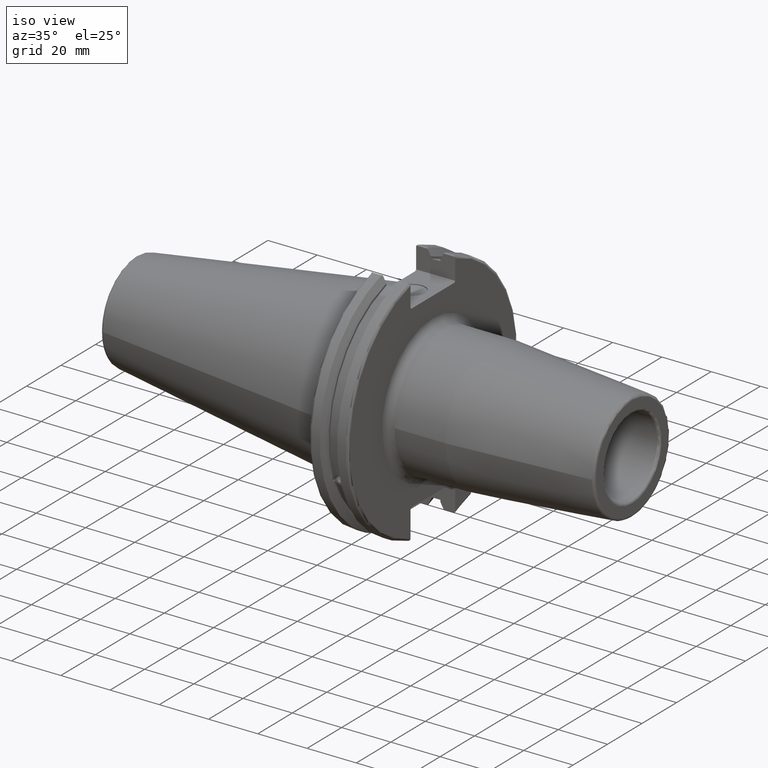
[diagram: clean part render]
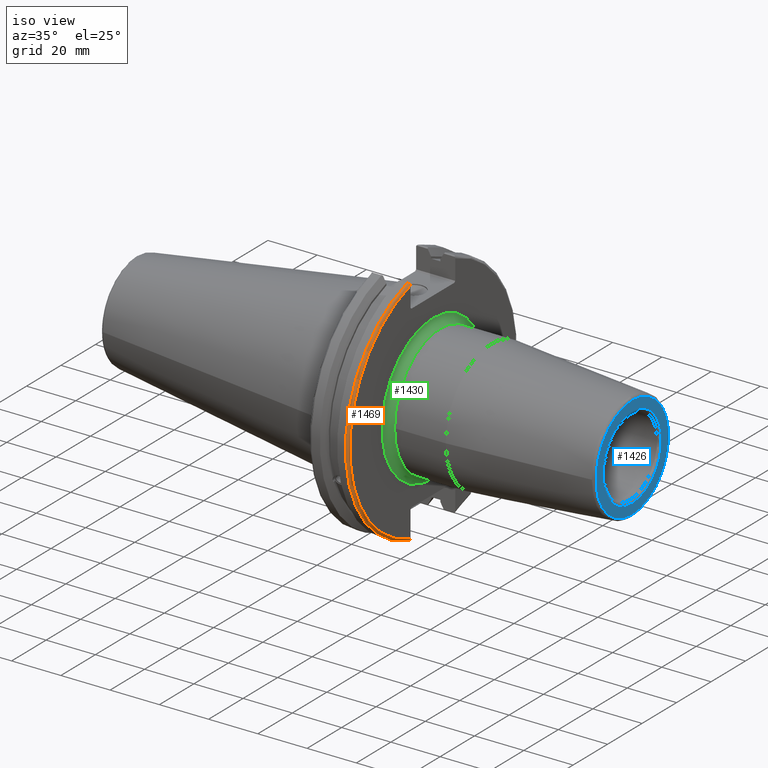
[diagram: same view with three faces highlighted in distinct colors, each labeled with its STEP entity id]
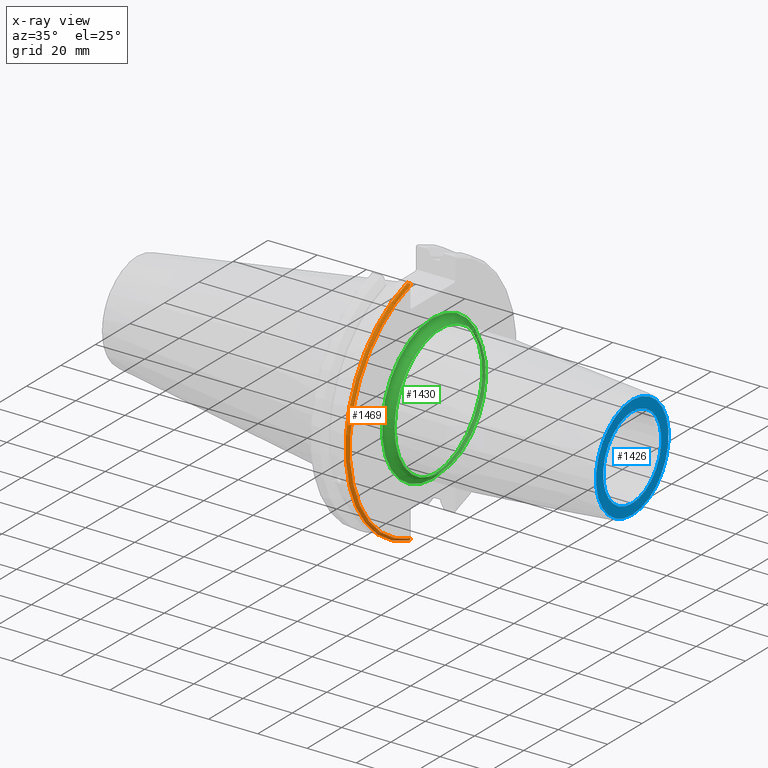
[diagram: x-ray of the same camera — body ghosted, the three highlighted faces saturated]
A machine part, iso view with three faces highlighted in distinct colors.
The next image is the same camera in x-ray (body ghosted, the three faces saturated) — at least one of them is partly hidden behind the body in this view.
Their STEP definitions:

[orange] entity #1469 — the highlighted toroidal blend (fillet) surface has major radius 48.2125 mm and minor (blend) radius 1 mm.
#60=B_SPLINE_CURVE_WITH_KNOTS('',3,(#2809,#2810,#2811,#2812,#2813,#2814),
 .UNSPECIFIED.,.F.,.F.,(4,2,4),(0.097707143645253,0.112358403262293,0.150882178076498),
 .UNSPECIFIED.);
#61=B_SPLINE_CURVE_WITH_KNOTS('',3,(#2816,#2817,#2818,#2819,#2820,#2821),
 .UNSPECIFIED.,.F.,.F.,(4,2,4),(0.452859694247731,0.491383469061936,0.506034728678978),
 .UNSPECIFIED.);
#62=B_SPLINE_CURVE_WITH_KNOTS('',3,(#2823,#2824,#2825,#2826,#2827,#2828,
#2829,#2830),.UNSPECIFIED.,.F.,.F.,(4,2,2,4),(-0.104075769062722,-0.0730268503455477,
-0.0343639873656263,0.),.UNSPECIFIED.);
#63=B_SPLINE_CURVE_WITH_KNOTS('',3,(#2833,#2834,#2835,#2836,#2837,#2838,
#2839,#2840),.UNSPECIFIED.,.F.,.F.,(4,2,2,4),(0.,0.0364336453281818,0.0778720357014993,
0.104197480645881),.UNSPECIFIED.);
#390=FACE_OUTER_BOUND('',#491,.T.);
#491=EDGE_LOOP('',(#1219,#1220,#1221,#1222,#1223,#1224));
#549=CIRCLE('',#1555,48.2125);
#587=CIRCLE('',#1632,49.2125);
#625=VERTEX_POINT('',#2152);
#626=VERTEX_POINT('',#2154);
#723=VERTEX_POINT('',#2808);
#724=VERTEX_POINT('',#2815);
#725=VERTEX_POINT('',#2822);
#726=VERTEX_POINT('',#2831);
#779=EDGE_CURVE('',#626,#625,#549,.T.);
#906=EDGE_CURVE('',#723,#626,#60,.T.);
#907=EDGE_CURVE('',#625,#724,#61,.T.);
#908=EDGE_CURVE('',#724,#725,#62,.T.);
#909=EDGE_CURVE('',#725,#726,#587,.T.);
#910=EDGE_CURVE('',#726,#723,#63,.T.);
#1219=ORIENTED_EDGE('',*,*,#906,.T.);
#1220=ORIENTED_EDGE('',*,*,#779,.T.);
#1221=ORIENTED_EDGE('',*,*,#907,.T.);
#1222=ORIENTED_EDGE('',*,*,#908,.T.);
#1223=ORIENTED_EDGE('',*,*,#909,.T.);
#1224=ORIENTED_EDGE('',*,*,#910,.T.);
#1421=TOROIDAL_SURFACE('',#1631,48.2125,1.);
#1469=ADVANCED_FACE('',(#390),#1421,.T.);
#1555=AXIS2_PLACEMENT_3D('',#2155,#1748,#1749);
#1631=AXIS2_PLACEMENT_3D('',#2807,#1950,#1951);
#1632=AXIS2_PLACEMENT_3D('',#2832,#1952,#1953);
#1748=DIRECTION('center_axis',(-1.,0.,0.));
#1749=DIRECTION('ref_axis',(0.,-1.,1.60812264967664E-16));
#1950=DIRECTION('center_axis',(1.,0.,0.));
#1951=DIRECTION('ref_axis',(0.,0.,-1.));
#1952=DIRECTION('center_axis',(1.,0.,0.));
#1953=DIRECTION('ref_axis',(0.,-1.,1.60812264967664E-16));
#2152=CARTESIAN_POINT('',(19.05,-12.95,46.4407434937254));
#2154=CARTESIAN_POINT('',(19.05,-12.95,-46.4407434937254));
#2155=CARTESIAN_POINT('Origin',(19.05,0.,0.));
#2807=CARTESIAN_POINT('Origin',(18.05,0.,0.));
#2808=CARTESIAN_POINT('',(18.9055020570566,-12.95,-46.9780755322917));
#2809=CARTESIAN_POINT('Ctrl Pts',(18.9055020570566,-12.95,-46.9780755322917));
#2810=CARTESIAN_POINT('Ctrl Pts',(18.9322353702005,-12.95,-46.9322596399785));
#2811=CARTESIAN_POINT('Ctrl Pts',(18.9549831813775,-12.95,-46.8849952622217));
#2812=CARTESIAN_POINT('Ctrl Pts',(19.0209992543299,-12.95,-46.7204975987179));
#2813=CARTESIAN_POINT('Ctrl Pts',(19.05,-12.95,-46.5691560764394));
#2814=CARTESIAN_POINT('Ctrl Pts',(19.05,-12.95,-46.4407434937254));
#2815=CARTESIAN_POINT('',(18.9055020570566,-12.95,46.9780755322918));
#2816=CARTESIAN_POINT('Ctrl Pts',(19.05,-12.95,46.4407434937254));
#2817=CARTESIAN_POINT('Ctrl Pts',(19.05,-12.95,46.5691560764394));
#2818=CARTESIAN_POINT('Ctrl Pts',(19.0209992543299,-12.95,46.7204975987179));
#2819=CARTESIAN_POINT('Ctrl Pts',(18.9549831813775,-12.95,46.8849952622217));
#2820=CARTESIAN_POINT('Ctrl Pts',(18.9322353702005,-12.95,46.9322596399785));
#2821=CARTESIAN_POINT('Ctrl Pts',(18.9055020570566,-12.95,46.9780755322918));
#2822=CARTESIAN_POINT('',(18.05,-13.4317035994433,47.3440544806494));
#2823=CARTESIAN_POINT('Ctrl Pts',(18.9055020570566,-12.95,46.9780755322918));
#2824=CARTESIAN_POINT('Ctrl Pts',(18.8571496772125,-13.0300321736484,47.0388807469102));
#2825=CARTESIAN_POINT('Ctrl Pts',(18.792640282015,-13.1083611826073,47.0983919657547));
#2826=CARTESIAN_POINT('Ctrl Pts',(18.6399248789208,-13.2478194810695,47.2043467509586));
#2827=CARTESIAN_POINT('Ctrl Pts',(18.5186188350904,-13.3242014686233,47.2623787015413));
#2828=CARTESIAN_POINT('Ctrl Pts',(18.2983889675417,-13.4067722493645,47.3251126473446));
#2829=CARTESIAN_POINT('Ctrl Pts',(18.1645466245521,-13.4317035994433,47.3440544806494));
#2830=CARTESIAN_POINT('Ctrl Pts',(18.05,-13.4317035994433,47.3440544806494));
#2831=CARTESIAN_POINT('',(18.05,-13.4317035994433,-47.3440544806494));
#2832=CARTESIAN_POINT('Origin',(18.05,0.,0.));
#2833=CARTESIAN_POINT('Ctrl Pts',(18.05,-13.4317035994433,-47.3440544806494));
#2834=CARTESIAN_POINT('Ctrl Pts',(18.1714454844273,-13.4317035994433,-47.3440544806494));
#2835=CARTESIAN_POINT('Ctrl Pts',(18.3128758164404,-13.4037095171132,-47.3227857070233));
#2836=CARTESIAN_POINT('Ctrl Pts',(18.54495745946,-13.3111366376071,-47.2524525703658));
#2837=CARTESIAN_POINT('Ctrl Pts',(18.6710431007969,-13.2254637570201,-47.1873617743322));
#2838=CARTESIAN_POINT('Ctrl Pts',(18.811782280389,-13.0847856162862,-47.0804802022157));
#2839=CARTESIAN_POINT('Ctrl Pts',(18.8641312352177,-13.0184763978125,-47.0301011349397));
#2840=CARTESIAN_POINT('Ctrl Pts',(18.9055020570566,-12.95,-46.9780755322917));

[blue] entity #1426 — the highlighted planar face has unit normal (1, 0, 0).
#289=FACE_BOUND('',#432,.T.);
#309=PLANE('',#1537);
#347=FACE_OUTER_BOUND('',#431,.T.);
#431=EDGE_LOOP('',(#981));
#432=EDGE_LOOP('',(#982));
#537=CIRCLE('',#1536,16.875);
#538=CIRCLE('',#1538,21.0756095083418);
#610=VERTEX_POINT('',#2110);
#611=VERTEX_POINT('',#2114);
#759=EDGE_CURVE('',#610,#610,#537,.T.);
#760=EDGE_CURVE('',#611,#611,#538,.T.);
#981=ORIENTED_EDGE('',*,*,#760,.F.);
#982=ORIENTED_EDGE('',*,*,#759,.F.);
#1426=ADVANCED_FACE('',(#347,#289),#309,.T.);
#1536=AXIS2_PLACEMENT_3D('',#2112,#1702,#1703);
#1537=AXIS2_PLACEMENT_3D('',#2113,#1704,#1705);
#1538=AXIS2_PLACEMENT_3D('',#2115,#1706,#1707);
#1702=DIRECTION('center_axis',(1.,0.,0.));
#1703=DIRECTION('ref_axis',(0.,-1.,1.83697019872103E-16));
#1704=DIRECTION('center_axis',(1.,0.,0.));
#1705=DIRECTION('ref_axis',(0.,0.,-1.));
#1706=DIRECTION('center_axis',(-1.,0.,0.));
#1707=DIRECTION('ref_axis',(0.,-1.,1.83697019872103E-16));
#2110=CARTESIAN_POINT('',(100.,-2.06659147356116E-15,16.875));
#2112=CARTESIAN_POINT('Origin',(100.,0.,0.));
#2113=CARTESIAN_POINT('Origin',(100.,15.875,0.));
#2114=CARTESIAN_POINT('',(100.,-2.58101777244703E-15,21.0756095083418));
#2115=CARTESIAN_POINT('Origin',(100.,0.,0.));

[green] entity #1430 — the highlighted toroidal blend (fillet) surface has major radius 29.5 mm and minor (blend) radius 3 mm.
#351=FACE_OUTER_BOUND('',#436,.T.);
#436=EDGE_LOOP('',(#998,#999,#1000,#1001,#1002));
#544=CIRCLE('',#1548,26.5);
#545=CIRCLE('',#1549,3.);
#546=CIRCLE('',#1550,29.5);
#547=CIRCLE('',#1551,26.5);
#616=VERTEX_POINT('',#2131);
#617=VERTEX_POINT('',#2132);
#618=VERTEX_POINT('',#2134);
#768=EDGE_CURVE('',#616,#617,#544,.T.);
#769=EDGE_CURVE('',#617,#618,#545,.T.);
#770=EDGE_CURVE('',#618,#618,#546,.T.);
#771=EDGE_CURVE('',#617,#616,#547,.T.);
#998=ORIENTED_EDGE('',*,*,#768,.T.);
#999=ORIENTED_EDGE('',*,*,#769,.T.);
#1000=ORIENTED_EDGE('',*,*,#770,.T.);
#1001=ORIENTED_EDGE('',*,*,#769,.F.);
#1002=ORIENTED_EDGE('',*,*,#771,.T.);
#1418=TOROIDAL_SURFACE('',#1547,29.5,3.);
#1430=ADVANCED_FACE('',(#351),#1418,.F.);
#1547=AXIS2_PLACEMENT_3D('',#2130,#1726,#1727);
#1548=AXIS2_PLACEMENT_3D('',#2133,#1728,#1729);
#1549=AXIS2_PLACEMENT_3D('',#2135,#1730,#1731);
#1550=AXIS2_PLACEMENT_3D('',#2136,#1732,#1733);
#1551=AXIS2_PLACEMENT_3D('',#2137,#1734,#1735);
#1726=DIRECTION('center_axis',(-1.,0.,0.));
#1727=DIRECTION('ref_axis',(0.,0.,1.));
#1728=DIRECTION('center_axis',(-1.,0.,0.));
#1729=DIRECTION('ref_axis',(0.,-1.,-1.22464679914735E-16));
#1730=DIRECTION('center_axis',(0.,-1.,1.22464679914735E-16));
#1731=DIRECTION('ref_axis',(0.,-1.22464679914735E-16,-1.));
#1732=DIRECTION('center_axis',(1.,0.,0.));
#1733=DIRECTION('ref_axis',(0.,-1.,-1.22464679914735E-16));
#1734=DIRECTION('center_axis',(-1.,0.,0.));
#1735=DIRECTION('ref_axis',(0.,-1.,-1.22464679914735E-16));
#2130=CARTESIAN_POINT('Origin',(22.05,0.,0.));
#2131=CARTESIAN_POINT('',(22.05,-26.5,-3.24531401774049E-15));
#2132=CARTESIAN_POINT('',(22.05,-3.24531401774049E-15,-26.5));
#2133=CARTESIAN_POINT('Origin',(22.05,0.,0.));
#2134=CARTESIAN_POINT('',(19.05,-3.61270805748469E-15,-29.5));
#2135=CARTESIAN_POINT('Origin',(22.05,-3.61270805748469E-15,-29.5));
#2136=CARTESIAN_POINT('Origin',(19.05,0.,0.));
#2137=CARTESIAN_POINT('Origin',(22.05,0.,0.));